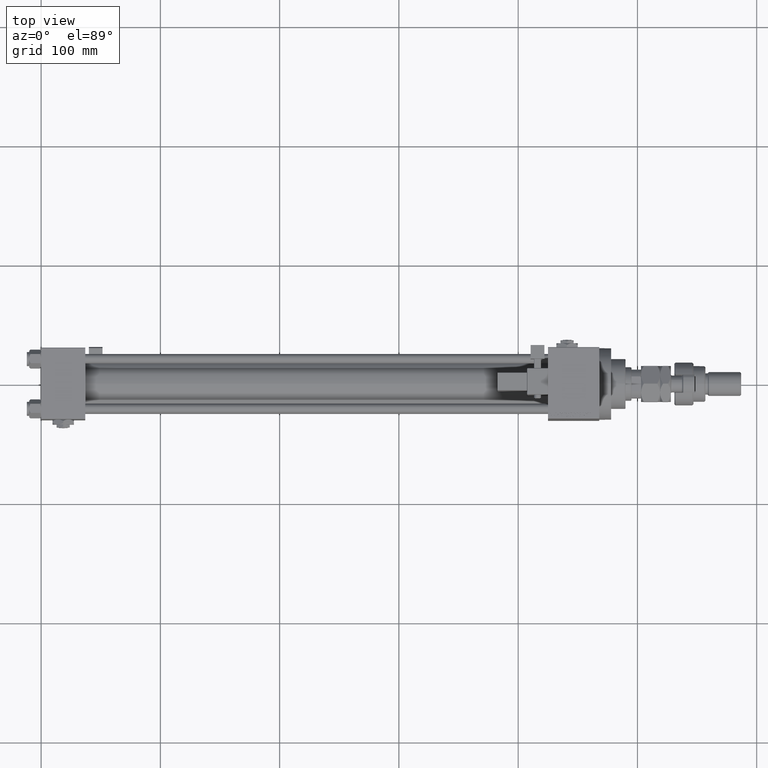
[diagram: clean part render]
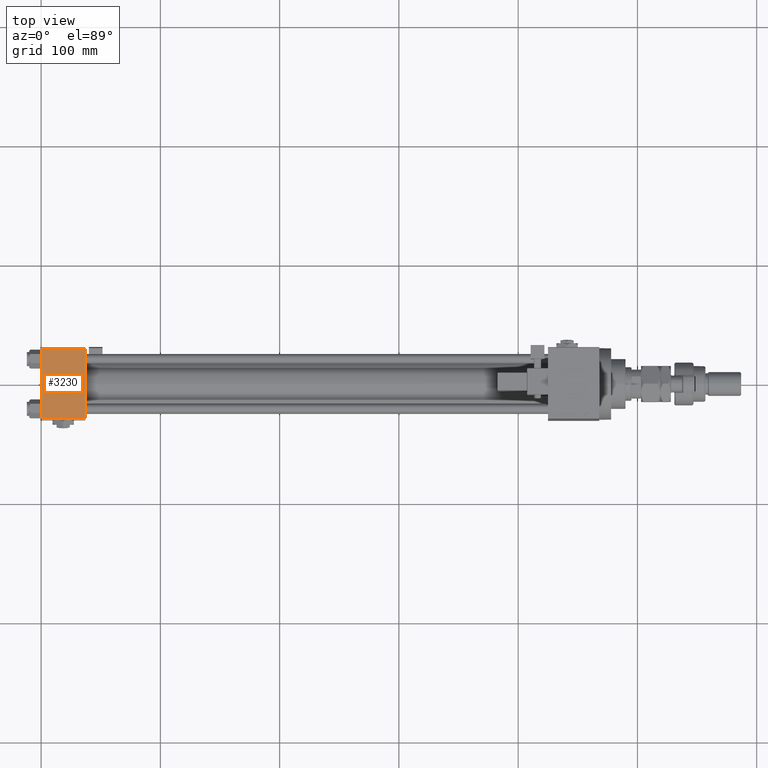
[diagram: same view with one face highlighted and labeled with its STEP entity id]
A machine part, top view. The second image highlights one B-rep face of the part: STEP entity #3230.
In plain terms, the highlighted planar face has unit normal (0, 0, -1).
Its self-contained STEP definition (entity closure, byte-faithful):
#714 = DIRECTION ( 'NONE',  ( 0.000000000000000000, -1.000000000000000000, -1.156482317317871725E-16 ) ) ;
#1267 = VERTEX_POINT ( 'NONE', #11445 ) ;
#1643 = DIRECTION ( 'NONE',  ( 1.000000000000000000, 0.000000000000000000, 0.000000000000000000 ) ) ;
#3230 = ADVANCED_FACE ( 'NONE', ( #3428 ), #24220, .F. ) ;
#3428 = FACE_OUTER_BOUND ( 'NONE', #29255, .T. ) ;
#5245 = AXIS2_PLACEMENT_3D ( 'NONE', #49872, #15741, #49339 ) ;
#5613 = LINE ( 'NONE', #17928, #40351 ) ;
#8012 = CARTESIAN_POINT ( 'NONE',  ( 37.00000000000000000, -29.49999999999998579, 29.99999999999999289 ) ) ;
#8499 = CARTESIAN_POINT ( 'NONE',  ( 0.000000000000000000, -29.49999999999998579, 29.99999999999999289 ) ) ;
#9676 = LINE ( 'NONE', #30727, #22131 ) ;
#9823 = EDGE_CURVE ( 'NONE', #1267, #23728, #9676, .T. ) ;
#11370 = VECTOR ( 'NONE', #39677, 1000.000000000000000 ) ;
#11445 = CARTESIAN_POINT ( 'NONE',  ( 37.00000000000000000, 29.49999999999999289, 30.00000000000000000 ) ) ;
#12980 = EDGE_CURVE ( 'NONE', #17096, #22147, #34729, .T. ) ;
#14344 = CARTESIAN_POINT ( 'NONE',  ( 0.000000000000000000, 29.49999999999999289, 30.00000000000000000 ) ) ;
#15611 = CARTESIAN_POINT ( 'NONE',  ( 37.00000000000000000, 29.99999999999999289, 30.00000000000000000 ) ) ;
#15741 = DIRECTION ( 'NONE',  ( 0.000000000000000000, 1.156482317317871725E-16, -1.000000000000000000 ) ) ;
#17096 = VERTEX_POINT ( 'NONE', #8499 ) ;
#17928 = CARTESIAN_POINT ( 'NONE',  ( 0.000000000000000000, 29.99999999999999289, 30.00000000000000000 ) ) ;
#18516 = ORIENTED_EDGE ( 'NONE', *, *, #9823, .T. ) ;
#20529 = ORIENTED_EDGE ( 'NONE', *, *, #41831, .F. ) ;
#22131 = VECTOR ( 'NONE', #34838, 1000.000000000000000 ) ;
#22147 = VERTEX_POINT ( 'NONE', #8012 ) ;
#23728 = VERTEX_POINT ( 'NONE', #14344 ) ;
#24096 = LINE ( 'NONE', #15611, #11370 ) ;
#24220 = PLANE ( 'NONE',  #5245 ) ;
#27424 = ORIENTED_EDGE ( 'NONE', *, *, #12980, .T. ) ;
#29255 = EDGE_LOOP ( 'NONE', ( #47990, #27424, #20529, #18516 ) ) ;
#30727 = CARTESIAN_POINT ( 'NONE',  ( 0.000000000000000000, 29.49999999999999289, 30.00000000000000000 ) ) ;
#34729 = LINE ( 'NONE', #39633, #42862 ) ;
#34838 = DIRECTION ( 'NONE',  ( -1.000000000000000000, 0.000000000000000000, 0.000000000000000000 ) ) ;
#39633 = CARTESIAN_POINT ( 'NONE',  ( 37.00000000000000000, -29.50000000000000000, 29.99999999999999289 ) ) ;
#39677 = DIRECTION ( 'NONE',  ( 0.000000000000000000, -1.000000000000000000, -1.156482317317871725E-16 ) ) ;
#40351 = VECTOR ( 'NONE', #714, 1000.000000000000000 ) ;
#41831 = EDGE_CURVE ( 'NONE', #1267, #22147, #24096, .T. ) ;
#42862 = VECTOR ( 'NONE', #1643, 1000.000000000000000 ) ;
#47990 = ORIENTED_EDGE ( 'NONE', *, *, #49750, .T. ) ;
#49339 = DIRECTION ( 'NONE',  ( 0.000000000000000000, 1.000000000000000000, 1.156482317317871725E-16 ) ) ;
#49750 = EDGE_CURVE ( 'NONE', #23728, #17096, #5613, .T. ) ;
#49872 = CARTESIAN_POINT ( 'NONE',  ( 37.00000000000000000, 29.99999999999999289, 30.00000000000000000 ) ) ;